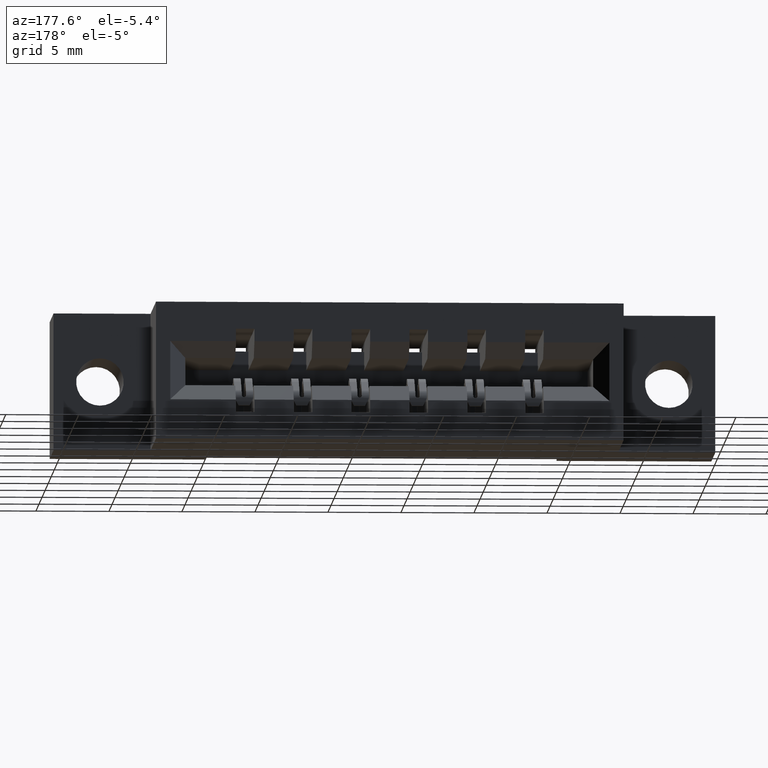
[diagram: clean part render]
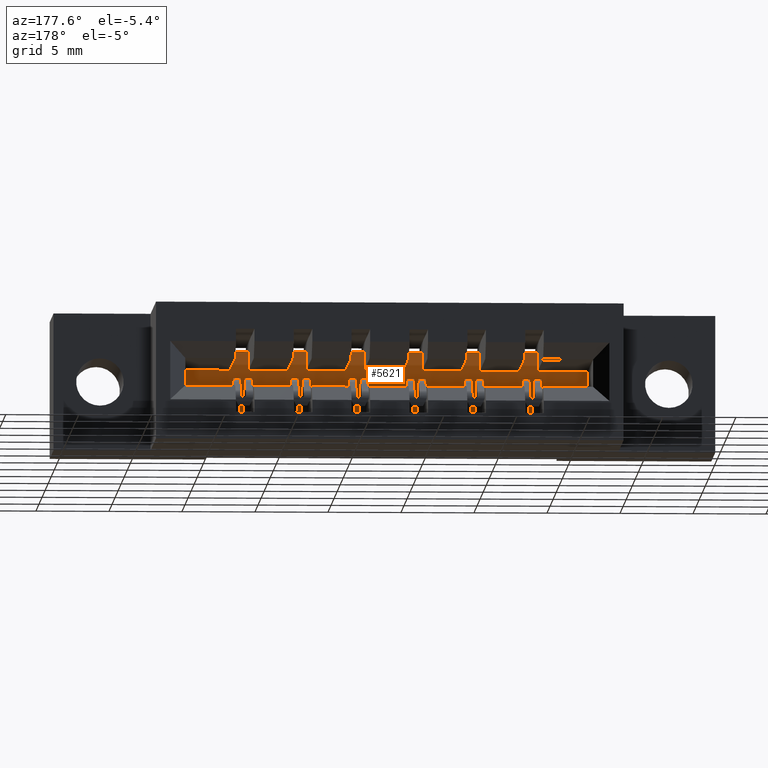
[diagram: same view with one face highlighted and labeled with its STEP entity id]
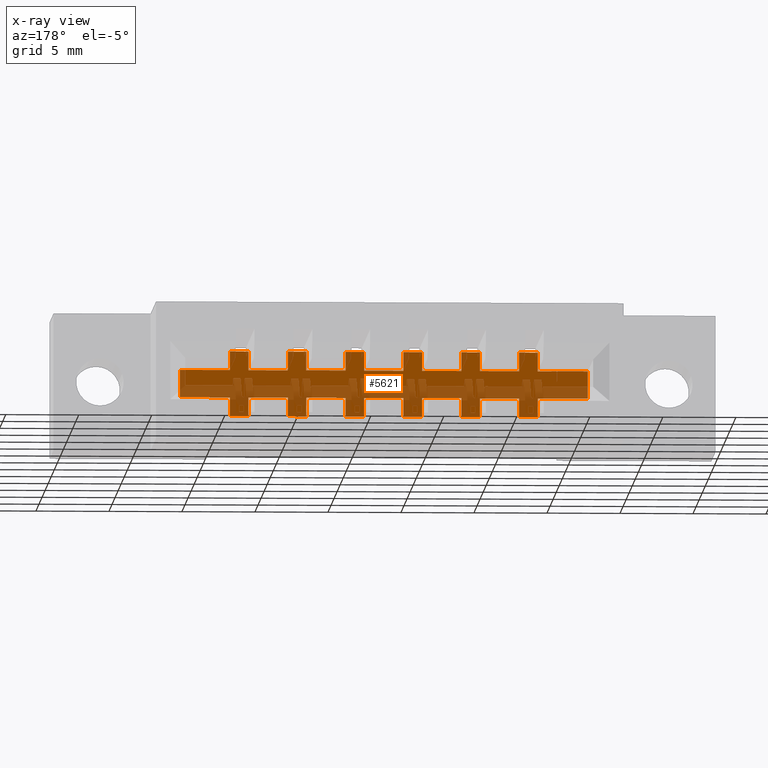
[diagram: x-ray of the same camera — body ghosted, the highlighted face saturated]
A machine part, auxiliary view. The second image highlights one B-rep face of the part: STEP entity #5621.
The next image is the same camera in x-ray: the body ghosted, the highlighted face saturated — about 48% of this face is hidden behind the body in this view.
In plain terms, the highlighted planar face has unit normal (0, -1, 0).
Its self-contained STEP definition (entity closure, byte-faithful):
#1 = DIRECTION ( 'NONE',  ( -0.0000000000000000000, -1.352399996863505455E-15, -1.000000000000000000 ) ) ;
#15 = ORIENTED_EDGE ( 'NONE', *, *, #413, .T. ) ;
#23 = CARTESIAN_POINT ( 'NONE',  ( 0.5269999999999999130, 0.2119999999999999385, -0.2220000000000002804 ) ) ;
#34 = VECTOR ( 'NONE', #3650, 39.37007874015748143 ) ;
#50 = CARTESIAN_POINT ( 'NONE',  ( 1.100999999999999979, 0.2119999999999999385, -0.2220000000000002804 ) ) ;
#77 = DIRECTION ( 'NONE',  ( 0.0000000000000000000, 0.0000000000000000000, -1.000000000000000000 ) ) ;
#113 = LINE ( 'NONE', #2023, #553 ) ;
#116 = VERTEX_POINT ( 'NONE', #23 ) ;
#123 = DIRECTION ( 'NONE',  ( 1.000000000000000000, -0.0000000000000000000, -0.0000000000000000000 ) ) ;
#124 = CARTESIAN_POINT ( 'NONE',  ( 1.256999999999999673, 0.2119999999999999385, -0.2724999999999999645 ) ) ;
#130 = LINE ( 'NONE', #4667, #4557 ) ;
#132 = ORIENTED_EDGE ( 'NONE', *, *, #7953, .T. ) ;
#168 = LINE ( 'NONE', #6779, #2890 ) ;
#212 = ORIENTED_EDGE ( 'NONE', *, *, #5435, .T. ) ;
#224 = VERTEX_POINT ( 'NONE', #236 ) ;
#236 = CARTESIAN_POINT ( 'NONE',  ( 0.6329999999999998961, 0.2119999999999998275, -0.1479999999999999372 ) ) ;
#239 = VECTOR ( 'NONE', #5280, 39.37007874015748143 ) ;
#268 = VECTOR ( 'NONE', #7360, 39.37007874015748143 ) ;
#275 = ORIENTED_EDGE ( 'NONE', *, *, #1096, .F. ) ;
#276 = EDGE_CURVE ( 'NONE', #3813, #2039, #6004, .T. ) ;
#299 = DIRECTION ( 'NONE',  ( 1.000000000000000000, -0.0000000000000000000, -0.0000000000000000000 ) ) ;
#333 = EDGE_CURVE ( 'NONE', #6211, #7041, #6607, .T. ) ;
#337 = CARTESIAN_POINT ( 'NONE',  ( 0.6829999999999999405, 0.2119999999999998830, -0.09750000000000025313 ) ) ;
#357 = VECTOR ( 'NONE', #1, 39.37007874015748143 ) ;
#413 = EDGE_CURVE ( 'NONE', #6975, #3317, #168, .T. ) ;
#417 = EDGE_CURVE ( 'NONE', #5051, #3773, #4834, .T. ) ;
#455 = VERTEX_POINT ( 'NONE', #5588 ) ;
#463 = EDGE_CURVE ( 'NONE', #2039, #4669, #3800, .T. ) ;
#497 = EDGE_CURVE ( 'NONE', #5333, #7066, #2290, .T. ) ;
#534 = ORIENTED_EDGE ( 'NONE', *, *, #7082, .T. ) ;
#536 = CARTESIAN_POINT ( 'NONE',  ( 0.7889999999999998126, 0.2119999999999999385, -0.2220000000000002804 ) ) ;
#551 = ORIENTED_EDGE ( 'NONE', *, *, #6147, .F. ) ;
#553 = VECTOR ( 'NONE', #1478, 39.37007874015748143 ) ;
#589 = ORIENTED_EDGE ( 'NONE', *, *, #1200, .T. ) ;
#599 = CARTESIAN_POINT ( 'NONE',  ( 0.9949999999999998845, 0.2119999999999999385, -0.2220000000000002804 ) ) ;
#624 = EDGE_CURVE ( 'NONE', #2697, #7281, #6539, .T. ) ;
#627 = ORIENTED_EDGE ( 'NONE', *, *, #7741, .T. ) ;
#641 = CARTESIAN_POINT ( 'NONE',  ( 1.442000000000000615, 0.2119999999999999385, -0.2220000000000001139 ) ) ;
#680 = DIRECTION ( 'NONE',  ( -0.0000000000000000000, -1.352399996863505455E-15, -1.000000000000000000 ) ) ;
#710 = EDGE_CURVE ( 'NONE', #3272, #5657, #1288, .T. ) ;
#711 = DIRECTION ( 'NONE',  ( 1.000000000000000000, -0.0000000000000000000, -0.0000000000000000000 ) ) ;
#715 = LINE ( 'NONE', #3942, #2512 ) ;
#735 = ORIENTED_EDGE ( 'NONE', *, *, #4903, .T. ) ;
#795 = DIRECTION ( 'NONE',  ( 0.0000000000000000000, -1.000000000000000000, 0.0000000000000000000 ) ) ;
#805 = VERTEX_POINT ( 'NONE', #4096 ) ;
#819 = CARTESIAN_POINT ( 'NONE',  ( 1.442000000000000615, 0.2119999999999999385, -0.1480000000000001315 ) ) ;
#835 = ORIENTED_EDGE ( 'NONE', *, *, #6887, .T. ) ;
#838 = VERTEX_POINT ( 'NONE', #2732 ) ;
#850 = DIRECTION ( 'NONE',  ( 1.000000000000000000, 0.0000000000000000000, 1.552186360036512475E-16 ) ) ;
#918 = DIRECTION ( 'NONE',  ( -0.0000000000000000000, -1.352399996863505455E-15, -1.000000000000000000 ) ) ;
#936 = CARTESIAN_POINT ( 'NONE',  ( 0.8389999999999998570, 0.2119999999999998275, -0.1479999999999999372 ) ) ;
#976 = CARTESIAN_POINT ( 'NONE',  ( 0.5269999999999999130, 0.2119999999999998275, -0.1479999999999999372 ) ) ;
#979 = ORIENTED_EDGE ( 'NONE', *, *, #417, .T. ) ;
#992 = VECTOR ( 'NONE', #2594, 39.37007874015748143 ) ;
#1030 = EDGE_CURVE ( 'NONE', #2336, #6975, #3828, .T. ) ;
#1036 = VECTOR ( 'NONE', #2052, 39.37007874015748143 ) ;
#1052 = DIRECTION ( 'NONE',  ( 1.000000000000000000, -0.0000000000000000000, -0.0000000000000000000 ) ) ;
#1063 = VECTOR ( 'NONE', #711, 39.37007874015748143 ) ;
#1073 = CARTESIAN_POINT ( 'NONE',  ( 0.3419999999999999152, 0.2119999999999999385, -0.1480000000000002980 ) ) ;
#1076 = CARTESIAN_POINT ( 'NONE',  ( 0.9949999999999998845, 0.2119999999999999385, -0.2220000000000002804 ) ) ;
#1081 = ORIENTED_EDGE ( 'NONE', *, *, #624, .F. ) ;
#1093 = EDGE_CURVE ( 'NONE', #8342, #7281, #6440, .T. ) ;
#1096 = EDGE_CURVE ( 'NONE', #5368, #6812, #1917, .T. ) ;
#1113 = DIRECTION ( 'NONE',  ( 1.000000000000000000, -0.0000000000000000000, -0.0000000000000000000 ) ) ;
#1118 = DIRECTION ( 'NONE',  ( 0.0000000000000000000, 0.0000000000000000000, -1.000000000000000000 ) ) ;
#1123 = CARTESIAN_POINT ( 'NONE',  ( 1.151000000000000023, 0.2119999999999999385, -0.2220000000000002804 ) ) ;
#1145 = LINE ( 'NONE', #4914, #1316 ) ;
#1154 = CARTESIAN_POINT ( 'NONE',  ( 0.7889999999999998126, 0.2119999999999999385, -0.2724999999999999645 ) ) ;
#1166 = EDGE_LOOP ( 'NONE', ( #8149, #5739, #627, #6694, #4867, #7195, #4372, #275, #2655, #735, #7827, #4580, #6190, #2915, #6196, #3762, #4948, #8144, #1576, #4628, #551, #589, #4611, #2210, #5306, #5182, #15, #4769, #5302, #1314, #3392, #2216, #6542, #5899, #212, #5425, #7447, #5853, #979, #132, #4213, #1248, #835, #1704, #1081, #6529, #534, #7172, #3479, #2611, #6482, #2589 ) ) ;
#1199 = CARTESIAN_POINT ( 'NONE',  ( 1.151000000000000023, 0.2119999999999999385, -0.1480000000000001592 ) ) ;
#1200 = EDGE_CURVE ( 'NONE', #4224, #116, #5474, .T. ) ;
#1215 = DIRECTION ( 'NONE',  ( -0.0000000000000000000, -0.0000000000000000000, 1.000000000000000000 ) ) ;
#1227 = VERTEX_POINT ( 'NONE', #4804 ) ;
#1243 = CARTESIAN_POINT ( 'NONE',  ( 1.100999999999999979, 0.2119999999999998830, -0.09750000000000025313 ) ) ;
#1248 = ORIENTED_EDGE ( 'NONE', *, *, #6777, .T. ) ;
#1276 = CARTESIAN_POINT ( 'NONE',  ( 0.7889999999999998126, 0.2119999999999998830, -0.09750000000000025313 ) ) ;
#1288 = LINE ( 'NONE', #3873, #4336 ) ;
#1301 = VECTOR ( 'NONE', #7394, 39.37007874015748143 ) ;
#1314 = ORIENTED_EDGE ( 'NONE', *, *, #276, .T. ) ;
#1316 = VECTOR ( 'NONE', #1854, 39.37007874015748143 ) ;
#1322 = LINE ( 'NONE', #50, #8193 ) ;
#1324 = CARTESIAN_POINT ( 'NONE',  ( 1.100999999999999979, 0.2119999999999999385, -0.2724999999999999645 ) ) ;
#1329 = VERTEX_POINT ( 'NONE', #1791 ) ;
#1342 = EDGE_CURVE ( 'NONE', #2578, #4152, #6793, .T. ) ;
#1402 = CARTESIAN_POINT ( 'NONE',  ( 0.4769999999999999241, 0.2119999999999998830, -0.09750000000000025313 ) ) ;
#1469 = VECTOR ( 'NONE', #8292, 39.37007874015748143 ) ;
#1478 = DIRECTION ( 'NONE',  ( -0.0000000000000000000, -1.352399996863505455E-15, -1.000000000000000000 ) ) ;
#1494 = VERTEX_POINT ( 'NONE', #1199 ) ;
#1554 = EDGE_CURVE ( 'NONE', #2336, #5985, #3391, .T. ) ;
#1562 = DIRECTION ( 'NONE',  ( -1.000000000000000000, -0.0000000000000000000, -1.552186360036512475E-16 ) ) ;
#1576 = ORIENTED_EDGE ( 'NONE', *, *, #710, .T. ) ;
#1593 = VECTOR ( 'NONE', #4361, 39.37007874015748143 ) ;
#1640 = LINE ( 'NONE', #8115, #2951 ) ;
#1669 = CARTESIAN_POINT ( 'NONE',  ( 0.6329999999999998961, 0.2119999999999999385, -0.2220000000000002804 ) ) ;
#1674 = CARTESIAN_POINT ( 'NONE',  ( 1.100999999999999979, 0.2119999999999999385, -0.2724999999999999645 ) ) ;
#1694 = DIRECTION ( 'NONE',  ( -1.000000000000000000, -0.0000000000000000000, -1.552186360036512475E-16 ) ) ;
#1704 = ORIENTED_EDGE ( 'NONE', *, *, #1093, .T. ) ;
#1711 = VECTOR ( 'NONE', #7710, 39.37007874015748143 ) ;
#1737 = DIRECTION ( 'NONE',  ( 1.000000000000000000, 0.0000000000000000000, 1.552186360036512475E-16 ) ) ;
#1791 = CARTESIAN_POINT ( 'NONE',  ( 1.306999999999999718, 0.2119999999999999385, -0.2220000000000002804 ) ) ;
#1849 = VERTEX_POINT ( 'NONE', #3770 ) ;
#1854 = DIRECTION ( 'NONE',  ( -0.0000000000000000000, -1.352399996863505455E-15, -1.000000000000000000 ) ) ;
#1917 = LINE ( 'NONE', #1324, #2784 ) ;
#1924 = CARTESIAN_POINT ( 'NONE',  ( 1.256999999999999673, 0.2119999999999999385, -0.2220000000000002804 ) ) ;
#1927 = VECTOR ( 'NONE', #4042, 39.37007874015748143 ) ;
#1939 = DIRECTION ( 'NONE',  ( 0.0000000000000000000, 0.0000000000000000000, -1.000000000000000000 ) ) ;
#2023 = CARTESIAN_POINT ( 'NONE',  ( 0.9449999999999998401, 0.2119999999999998275, -0.1479999999999999372 ) ) ;
#2025 = EDGE_CURVE ( 'NONE', #8257, #1227, #113, .T. ) ;
#2029 = DIRECTION ( 'NONE',  ( -0.0000000000000000000, -1.352399996863505455E-15, -1.000000000000000000 ) ) ;
#2039 = VERTEX_POINT ( 'NONE', #4647 ) ;
#2048 = CARTESIAN_POINT ( 'NONE',  ( 1.256999999999999673, 0.2119999999999999385, -0.2220000000000002804 ) ) ;
#2052 = DIRECTION ( 'NONE',  ( -0.0000000000000000000, -1.352399996863505455E-15, -1.000000000000000000 ) ) ;
#2069 = VERTEX_POINT ( 'NONE', #5450 ) ;
#2146 = CARTESIAN_POINT ( 'NONE',  ( 0.6329999999999998961, 0.2119999999999998275, -0.1479999999999999372 ) ) ;
#2192 = CARTESIAN_POINT ( 'NONE',  ( 0.4769999999999999241, 0.2119999999999998830, -0.09750000000000025313 ) ) ;
#2195 = LINE ( 'NONE', #4608, #4304 ) ;
#2210 = ORIENTED_EDGE ( 'NONE', *, *, #4357, .F. ) ;
#2216 = ORIENTED_EDGE ( 'NONE', *, *, #2733, .T. ) ;
#2261 = DIRECTION ( 'NONE',  ( 0.0000000000000000000, 0.0000000000000000000, -1.000000000000000000 ) ) ;
#2270 = DIRECTION ( 'NONE',  ( 0.0000000000000000000, 0.0000000000000000000, -1.000000000000000000 ) ) ;
#2290 = LINE ( 'NONE', #4245, #2513 ) ;
#2327 = LINE ( 'NONE', #3560, #3837 ) ;
#2336 = VERTEX_POINT ( 'NONE', #4722 ) ;
#2356 = VERTEX_POINT ( 'NONE', #819 ) ;
#2391 = EDGE_CURVE ( 'NONE', #3903, #1329, #8022, .T. ) ;
#2460 = CARTESIAN_POINT ( 'NONE',  ( 0.3419999999999999152, 0.2119999999999999385, -0.1480000000000002980 ) ) ;
#2501 = VERTEX_POINT ( 'NONE', #4135 ) ;
#2512 = VECTOR ( 'NONE', #123, 39.37007874015748143 ) ;
#2513 = VECTOR ( 'NONE', #299, 39.37007874015748143 ) ;
#2541 = CARTESIAN_POINT ( 'NONE',  ( 1.151000000000000023, 0.2119999999999999385, -0.2724999999999999645 ) ) ;
#2554 = VECTOR ( 'NONE', #918, 39.37007874015748143 ) ;
#2578 = VERTEX_POINT ( 'NONE', #599 ) ;
#2589 = ORIENTED_EDGE ( 'NONE', *, *, #3464, .T. ) ;
#2594 = DIRECTION ( 'NONE',  ( -1.000000000000000000, -0.0000000000000000000, -1.552186360036512475E-16 ) ) ;
#2611 = ORIENTED_EDGE ( 'NONE', *, *, #497, .T. ) ;
#2621 = LINE ( 'NONE', #7110, #357 ) ;
#2631 = DIRECTION ( 'NONE',  ( 0.0000000000000000000, 0.0000000000000000000, -1.000000000000000000 ) ) ;
#2640 = VERTEX_POINT ( 'NONE', #4979 ) ;
#2655 = ORIENTED_EDGE ( 'NONE', *, *, #7698, .F. ) ;
#2656 = LINE ( 'NONE', #6555, #5662 ) ;
#2657 = VERTEX_POINT ( 'NONE', #3357 ) ;
#2697 = VERTEX_POINT ( 'NONE', #7875 ) ;
#2708 = CARTESIAN_POINT ( 'NONE',  ( 0.6829999999999999405, 0.2119999999999999385, -0.2724999999999999645 ) ) ;
#2732 = CARTESIAN_POINT ( 'NONE',  ( 1.151000000000000023, 0.2119999999999998830, -0.09750000000000025313 ) ) ;
#2733 = EDGE_CURVE ( 'NONE', #4669, #224, #3441, .T. ) ;
#2750 = CARTESIAN_POINT ( 'NONE',  ( 0.9949999999999998845, 0.2119999999999998275, -0.1479999999999999372 ) ) ;
#2764 = CARTESIAN_POINT ( 'NONE',  ( 0.3419999999999999152, 0.2119999999999999385, -0.2220000000000002804 ) ) ;
#2784 = VECTOR ( 'NONE', #7671, 39.37007874015748143 ) ;
#2868 = VERTEX_POINT ( 'NONE', #8136 ) ;
#2890 = VECTOR ( 'NONE', #1215, 39.37007874015748143 ) ;
#2915 = ORIENTED_EDGE ( 'NONE', *, *, #3283, .T. ) ;
#2923 = DIRECTION ( 'NONE',  ( -1.000000000000000000, -0.0000000000000000000, -1.552186360036512475E-16 ) ) ;
#2951 = VECTOR ( 'NONE', #2270, 39.37007874015748143 ) ;
#2953 = EDGE_CURVE ( 'NONE', #7780, #4189, #3779, .T. ) ;
#2985 = CARTESIAN_POINT ( 'NONE',  ( 1.256999999999999673, 0.2119999999999998830, -0.09750000000000025313 ) ) ;
#3000 = LINE ( 'NONE', #6852, #7790 ) ;
#3037 = CARTESIAN_POINT ( 'NONE',  ( 1.256999999999999673, 0.2119999999999999385, -0.2724999999999999645 ) ) ;
#3079 = VECTOR ( 'NONE', #7851, 39.37007874015748143 ) ;
#3088 = LINE ( 'NONE', #5674, #4983 ) ;
#3141 = EDGE_CURVE ( 'NONE', #805, #7780, #5297, .T. ) ;
#3156 = EDGE_CURVE ( 'NONE', #4886, #2657, #5166, .T. ) ;
#3185 = CARTESIAN_POINT ( 'NONE',  ( 0.3419999999999999152, 0.2119999999999999385, -0.2220000000000002804 ) ) ;
#3272 = VERTEX_POINT ( 'NONE', #6816 ) ;
#3283 = EDGE_CURVE ( 'NONE', #4886, #3670, #2327, .T. ) ;
#3304 = VERTEX_POINT ( 'NONE', #5373 ) ;
#3310 = CARTESIAN_POINT ( 'NONE',  ( 0.6329999999999998961, 0.2119999999999998830, -0.09750000000000025313 ) ) ;
#3317 = VERTEX_POINT ( 'NONE', #5547 ) ;
#3357 = CARTESIAN_POINT ( 'NONE',  ( 0.9449999999999998401, 0.2119999999999999385, -0.2724999999999999645 ) ) ;
#3391 = LINE ( 'NONE', #6092, #7185 ) ;
#3392 = ORIENTED_EDGE ( 'NONE', *, *, #463, .T. ) ;
#3441 = LINE ( 'NONE', #3949, #3740 ) ;
#3464 = EDGE_CURVE ( 'NONE', #4873, #2356, #3648, .T. ) ;
#3479 = ORIENTED_EDGE ( 'NONE', *, *, #8017, .F. ) ;
#3524 = LINE ( 'NONE', #4117, #4725 ) ;
#3560 = CARTESIAN_POINT ( 'NONE',  ( 0.3419999999999999152, 0.2119999999999999385, -0.2220000000000002804 ) ) ;
#3576 = DIRECTION ( 'NONE',  ( 1.000000000000000000, 0.0000000000000000000, 1.552186360036512475E-16 ) ) ;
#3610 = VECTOR ( 'NONE', #4431, 39.37007874015748143 ) ;
#3648 = LINE ( 'NONE', #5710, #5724 ) ;
#3650 = DIRECTION ( 'NONE',  ( -0.0000000000000000000, -1.352399996863505455E-15, -1.000000000000000000 ) ) ;
#3670 = VERTEX_POINT ( 'NONE', #6078 ) ;
#3690 = EDGE_CURVE ( 'NONE', #6318, #224, #7357, .T. ) ;
#3732 = VECTOR ( 'NONE', #5687, 39.37007874015748143 ) ;
#3740 = VECTOR ( 'NONE', #5890, 39.37007874015748143 ) ;
#3762 = ORIENTED_EDGE ( 'NONE', *, *, #2953, .F. ) ;
#3769 = VECTOR ( 'NONE', #2261, 39.37007874015748143 ) ;
#3770 = CARTESIAN_POINT ( 'NONE',  ( 0.6829999999999999405, 0.2119999999999999385, -0.1480000000000002425 ) ) ;
#3772 = VERTEX_POINT ( 'NONE', #1123 ) ;
#3773 = VERTEX_POINT ( 'NONE', #5611 ) ;
#3779 = LINE ( 'NONE', #1154, #6271 ) ;
#3800 = LINE ( 'NONE', #976, #3610 ) ;
#3813 = VERTEX_POINT ( 'NONE', #2192 ) ;
#3828 = LINE ( 'NONE', #3185, #992 ) ;
#3837 = VECTOR ( 'NONE', #2923, 39.37007874015748143 ) ;
#3851 = LINE ( 'NONE', #7825, #1063 ) ;
#3857 = EDGE_CURVE ( 'NONE', #2697, #838, #5764, .T. ) ;
#3873 = CARTESIAN_POINT ( 'NONE',  ( 0.6829999999999999405, 0.2119999999999999385, -0.2220000000000002804 ) ) ;
#3891 = CARTESIAN_POINT ( 'NONE',  ( 0.9449999999999998401, 0.2119999999999999385, -0.2220000000000002804 ) ) ;
#3903 = VERTEX_POINT ( 'NONE', #641 ) ;
#3907 = DIRECTION ( 'NONE',  ( 1.000000000000000000, -0.0000000000000000000, -0.0000000000000000000 ) ) ;
#3942 = CARTESIAN_POINT ( 'NONE',  ( 0.6329999999999998961, 0.2119999999999999385, -0.2724999999999999645 ) ) ;
#3949 = CARTESIAN_POINT ( 'NONE',  ( 0.3419999999999999152, 0.2119999999999999385, -0.1480000000000002980 ) ) ;
#3968 = CARTESIAN_POINT ( 'NONE',  ( 0.7889999999999998126, 0.2119999999999998275, -0.1479999999999999372 ) ) ;
#3988 = LINE ( 'NONE', #1276, #5776 ) ;
#4042 = DIRECTION ( 'NONE',  ( -1.000000000000000000, -0.0000000000000000000, -1.552186360036512475E-16 ) ) ;
#4076 = DIRECTION ( 'NONE',  ( 0.0000000000000000000, 0.0000000000000000000, -1.000000000000000000 ) ) ;
#4080 = LINE ( 'NONE', #4754, #7008 ) ;
#4096 = CARTESIAN_POINT ( 'NONE',  ( 0.7889999999999998126, 0.2119999999999999385, -0.2220000000000002804 ) ) ;
#4117 = CARTESIAN_POINT ( 'NONE',  ( 0.3419999999999999152, 0.2119999999999999385, -0.2220000000000002804 ) ) ;
#4135 = CARTESIAN_POINT ( 'NONE',  ( 0.5269999999999999130, 0.2119999999999999385, -0.2724999999999999645 ) ) ;
#4151 = CARTESIAN_POINT ( 'NONE',  ( 1.442000000000000615, 0.2119999999999999385, -0.2220000000000001139 ) ) ;
#4152 = VERTEX_POINT ( 'NONE', #4171 ) ;
#4156 = CARTESIAN_POINT ( 'NONE',  ( 0.3419999999999999152, 0.2119999999999999385, -0.2220000000000002804 ) ) ;
#4171 = CARTESIAN_POINT ( 'NONE',  ( 0.9949999999999998845, 0.2119999999999999385, -0.2724999999999999645 ) ) ;
#4189 = VERTEX_POINT ( 'NONE', #4970 ) ;
#4213 = ORIENTED_EDGE ( 'NONE', *, *, #2025, .F. ) ;
#4224 = VERTEX_POINT ( 'NONE', #1669 ) ;
#4244 = CARTESIAN_POINT ( 'NONE',  ( 0.6329999999999998961, 0.2119999999999998830, -0.09750000000000025313 ) ) ;
#4245 = CARTESIAN_POINT ( 'NONE',  ( 1.256999999999999673, 0.2119999999999998830, -0.09750000000000025313 ) ) ;
#4298 = LINE ( 'NONE', #1073, #7103 ) ;
#4304 = VECTOR ( 'NONE', #1562, 39.37007874015748143 ) ;
#4336 = VECTOR ( 'NONE', #6450, 39.37007874015748143 ) ;
#4357 = EDGE_CURVE ( 'NONE', #5985, #2501, #7900, .T. ) ;
#4361 = DIRECTION ( 'NONE',  ( -0.0000000000000000000, -1.352399996863505455E-15, -1.000000000000000000 ) ) ;
#4372 = ORIENTED_EDGE ( 'NONE', *, *, #4964, .T. ) ;
#4396 = EDGE_CURVE ( 'NONE', #805, #3272, #2195, .T. ) ;
#4431 = DIRECTION ( 'NONE',  ( -0.0000000000000000000, -1.352399996863505455E-15, -1.000000000000000000 ) ) ;
#4444 = EDGE_CURVE ( 'NONE', #3813, #2640, #8036, .T. ) ;
#4472 = DIRECTION ( 'NONE',  ( 0.0000000000000000000, 0.0000000000000000000, -1.000000000000000000 ) ) ;
#4483 = EDGE_CURVE ( 'NONE', #2657, #4152, #3000, .T. ) ;
#4557 = VECTOR ( 'NONE', #680, 39.37007874015748143 ) ;
#4580 = ORIENTED_EDGE ( 'NONE', *, *, #4483, .F. ) ;
#4598 = LINE ( 'NONE', #6631, #3079 ) ;
#4608 = CARTESIAN_POINT ( 'NONE',  ( 0.3419999999999999152, 0.2119999999999999385, -0.2220000000000002804 ) ) ;
#4611 = ORIENTED_EDGE ( 'NONE', *, *, #5372, .T. ) ;
#4627 = CARTESIAN_POINT ( 'NONE',  ( 0.3419999999999999152, 0.2119999999999999385, -0.1480000000000002980 ) ) ;
#4628 = ORIENTED_EDGE ( 'NONE', *, *, #8074, .F. ) ;
#4647 = CARTESIAN_POINT ( 'NONE',  ( 0.5269999999999999130, 0.2119999999999998830, -0.09750000000000025313 ) ) ;
#4666 = EDGE_CURVE ( 'NONE', #5133, #6211, #8313, .T. ) ;
#4667 = CARTESIAN_POINT ( 'NONE',  ( 0.7889999999999998126, 0.2119999999999998275, -0.1479999999999999372 ) ) ;
#4669 = VERTEX_POINT ( 'NONE', #7136 ) ;
#4692 = DIRECTION ( 'NONE',  ( 0.0000000000000000000, -0.0000000000000000000, -1.000000000000000000 ) ) ;
#4722 = CARTESIAN_POINT ( 'NONE',  ( 0.4769999999999999241, 0.2119999999999999385, -0.2220000000000002804 ) ) ;
#4725 = VECTOR ( 'NONE', #1694, 39.37007874015748143 ) ;
#4745 = DIRECTION ( 'NONE',  ( 1.000000000000000000, -0.0000000000000000000, -0.0000000000000000000 ) ) ;
#4754 = CARTESIAN_POINT ( 'NONE',  ( 0.3419999999999999152, 0.2119999999999999385, -0.1480000000000002980 ) ) ;
#4769 = ORIENTED_EDGE ( 'NONE', *, *, #6497, .T. ) ;
#4791 = VECTOR ( 'NONE', #1939, 39.37007874015748143 ) ;
#4800 = CARTESIAN_POINT ( 'NONE',  ( 0.7889999999999998126, 0.2119999999999999385, -0.2724999999999999645 ) ) ;
#4804 = CARTESIAN_POINT ( 'NONE',  ( 0.9449999999999998401, 0.2119999999999998275, -0.1479999999999999372 ) ) ;
#4819 = VECTOR ( 'NONE', #6778, 39.37007874015748143 ) ;
#4834 = LINE ( 'NONE', #936, #34 ) ;
#4867 = ORIENTED_EDGE ( 'NONE', *, *, #4666, .F. ) ;
#4873 = VERTEX_POINT ( 'NONE', #6845 ) ;
#4886 = VERTEX_POINT ( 'NONE', #7520 ) ;
#4903 = EDGE_CURVE ( 'NONE', #2868, #2578, #6245, .T. ) ;
#4914 = CARTESIAN_POINT ( 'NONE',  ( 1.151000000000000023, 0.2119999999999998275, -0.1479999999999999372 ) ) ;
#4932 = DIRECTION ( 'NONE',  ( 0.0000000000000000000, 0.0000000000000000000, -1.000000000000000000 ) ) ;
#4948 = ORIENTED_EDGE ( 'NONE', *, *, #3141, .F. ) ;
#4964 = EDGE_CURVE ( 'NONE', #3772, #6812, #6803, .T. ) ;
#4970 = CARTESIAN_POINT ( 'NONE',  ( 0.8389999999999998570, 0.2119999999999999385, -0.2724999999999999645 ) ) ;
#4979 = CARTESIAN_POINT ( 'NONE',  ( 0.4769999999999999241, 0.2119999999999998275, -0.1479999999999999372 ) ) ;
#4983 = VECTOR ( 'NONE', #7492, 39.37007874015748143 ) ;
#4984 = AXIS2_PLACEMENT_3D ( 'NONE', #4151, #795, #4692 ) ;
#5051 = VERTEX_POINT ( 'NONE', #6931 ) ;
#5133 = VERTEX_POINT ( 'NONE', #2048 ) ;
#5166 = LINE ( 'NONE', #3891, #4791 ) ;
#5181 = VECTOR ( 'NONE', #1118, 39.37007874015748143 ) ;
#5182 = ORIENTED_EDGE ( 'NONE', *, *, #1030, .T. ) ;
#5276 = CARTESIAN_POINT ( 'NONE',  ( 1.100999999999999979, 0.2119999999999998275, -0.1479999999999999372 ) ) ;
#5280 = DIRECTION ( 'NONE',  ( 1.000000000000000000, 0.0000000000000000000, 1.552186360036512475E-16 ) ) ;
#5297 = LINE ( 'NONE', #536, #7356 ) ;
#5302 = ORIENTED_EDGE ( 'NONE', *, *, #4444, .F. ) ;
#5306 = ORIENTED_EDGE ( 'NONE', *, *, #1554, .F. ) ;
#5333 = VERTEX_POINT ( 'NONE', #2985 ) ;
#5368 = VERTEX_POINT ( 'NONE', #1674 ) ;
#5372 = EDGE_CURVE ( 'NONE', #116, #2501, #6106, .T. ) ;
#5373 = CARTESIAN_POINT ( 'NONE',  ( 1.256999999999999673, 0.2119999999999998275, -0.1479999999999999372 ) ) ;
#5421 = DIRECTION ( 'NONE',  ( 1.000000000000000000, -0.0000000000000000000, -0.0000000000000000000 ) ) ;
#5425 = ORIENTED_EDGE ( 'NONE', *, *, #5945, .T. ) ;
#5435 = EDGE_CURVE ( 'NONE', #6844, #1849, #2656, .T. ) ;
#5450 = CARTESIAN_POINT ( 'NONE',  ( 0.7889999999999998126, 0.2119999999999998830, -0.09750000000000025313 ) ) ;
#5474 = LINE ( 'NONE', #2764, #1927 ) ;
#5476 = CARTESIAN_POINT ( 'NONE',  ( 0.5269999999999999130, 0.2119999999999999385, -0.2220000000000002804 ) ) ;
#5530 = DIRECTION ( 'NONE',  ( 0.0000000000000000000, 0.0000000000000000000, -1.000000000000000000 ) ) ;
#5547 = CARTESIAN_POINT ( 'NONE',  ( 0.3419999999999999152, 0.2119999999999999385, -0.1480000000000002980 ) ) ;
#5569 = CARTESIAN_POINT ( 'NONE',  ( 1.100999999999999979, 0.2119999999999998275, -0.1479999999999999372 ) ) ;
#5588 = CARTESIAN_POINT ( 'NONE',  ( 0.6329999999999998961, 0.2119999999999999385, -0.2724999999999999645 ) ) ;
#5611 = CARTESIAN_POINT ( 'NONE',  ( 0.8389999999999998570, 0.2119999999999999385, -0.1480000000000002147 ) ) ;
#5621 = ADVANCED_FACE ( 'NONE', ( #5997 ), #6040, .F. ) ;
#5657 = VERTEX_POINT ( 'NONE', #2708 ) ;
#5662 = VECTOR ( 'NONE', #2029, 39.37007874015748143 ) ;
#5674 = CARTESIAN_POINT ( 'NONE',  ( 1.306999999999999718, 0.2119999999999998275, -0.1479999999999999372 ) ) ;
#5687 = DIRECTION ( 'NONE',  ( 1.000000000000000000, 0.0000000000000000000, 1.552186360036512475E-16 ) ) ;
#5710 = CARTESIAN_POINT ( 'NONE',  ( 0.3419999999999999152, 0.2119999999999999385, -0.1480000000000002980 ) ) ;
#5724 = VECTOR ( 'NONE', #1737, 39.37007874015748143 ) ;
#5739 = ORIENTED_EDGE ( 'NONE', *, *, #2391, .T. ) ;
#5756 = LINE ( 'NONE', #2460, #3732 ) ;
#5764 = LINE ( 'NONE', #1243, #7687 ) ;
#5776 = VECTOR ( 'NONE', #7118, 39.37007874015748143 ) ;
#5853 = ORIENTED_EDGE ( 'NONE', *, *, #6316, .T. ) ;
#5890 = DIRECTION ( 'NONE',  ( 1.000000000000000000, 0.0000000000000000000, 1.552186360036512475E-16 ) ) ;
#5899 = ORIENTED_EDGE ( 'NONE', *, *, #8164, .T. ) ;
#5945 = EDGE_CURVE ( 'NONE', #1849, #7223, #5986, .T. ) ;
#5976 = EDGE_CURVE ( 'NONE', #3670, #4189, #4598, .T. ) ;
#5985 = VERTEX_POINT ( 'NONE', #7224 ) ;
#5986 = LINE ( 'NONE', #7935, #239 ) ;
#5997 = FACE_OUTER_BOUND ( 'NONE', #1166, .T. ) ;
#6004 = LINE ( 'NONE', #1402, #8286 ) ;
#6040 = PLANE ( 'NONE',  #4984 ) ;
#6070 = DIRECTION ( 'NONE',  ( -1.000000000000000000, -0.0000000000000000000, -1.552186360036512475E-16 ) ) ;
#6078 = CARTESIAN_POINT ( 'NONE',  ( 0.8389999999999998570, 0.2119999999999999385, -0.2220000000000002804 ) ) ;
#6092 = CARTESIAN_POINT ( 'NONE',  ( 0.4769999999999999241, 0.2119999999999999385, -0.2220000000000002804 ) ) ;
#6101 = VERTEX_POINT ( 'NONE', #7481 ) ;
#6106 = LINE ( 'NONE', #5476, #3769 ) ;
#6116 = VECTOR ( 'NONE', #5421, 39.37007874015748143 ) ;
#6147 = EDGE_CURVE ( 'NONE', #4224, #455, #1640, .T. ) ;
#6158 = CARTESIAN_POINT ( 'NONE',  ( 1.151000000000000023, 0.2119999999999999385, -0.2220000000000002804 ) ) ;
#6190 = ORIENTED_EDGE ( 'NONE', *, *, #3156, .F. ) ;
#6196 = ORIENTED_EDGE ( 'NONE', *, *, #5976, .T. ) ;
#6211 = VERTEX_POINT ( 'NONE', #3037 ) ;
#6245 = LINE ( 'NONE', #8069, #1301 ) ;
#6257 = CARTESIAN_POINT ( 'NONE',  ( 1.306999999999999718, 0.2119999999999998830, -0.09750000000000025313 ) ) ;
#6267 = EDGE_CURVE ( 'NONE', #2069, #7223, #130, .T. ) ;
#6268 = LINE ( 'NONE', #6350, #1469 ) ;
#6271 = VECTOR ( 'NONE', #1113, 39.37007874015748143 ) ;
#6316 = EDGE_CURVE ( 'NONE', #2069, #5051, #3988, .T. ) ;
#6318 = VERTEX_POINT ( 'NONE', #3310 ) ;
#6350 = CARTESIAN_POINT ( 'NONE',  ( 1.442000000000000615, 0.2119999999999999385, -0.1480000000000001315 ) ) ;
#6440 = LINE ( 'NONE', #4627, #1711 ) ;
#6450 = DIRECTION ( 'NONE',  ( 0.0000000000000000000, 0.0000000000000000000, -1.000000000000000000 ) ) ;
#6482 = ORIENTED_EDGE ( 'NONE', *, *, #7042, .T. ) ;
#6497 = EDGE_CURVE ( 'NONE', #3317, #2640, #4080, .T. ) ;
#6529 = ORIENTED_EDGE ( 'NONE', *, *, #3857, .T. ) ;
#6539 = LINE ( 'NONE', #5276, #1036 ) ;
#6542 = ORIENTED_EDGE ( 'NONE', *, *, #3690, .F. ) ;
#6555 = CARTESIAN_POINT ( 'NONE',  ( 0.6829999999999999405, 0.2119999999999998275, -0.1479999999999999372 ) ) ;
#6571 = EDGE_CURVE ( 'NONE', #2356, #3903, #6268, .T. ) ;
#6607 = LINE ( 'NONE', #124, #6116 ) ;
#6631 = CARTESIAN_POINT ( 'NONE',  ( 0.8389999999999998570, 0.2119999999999999385, -0.2220000000000002804 ) ) ;
#6688 = CARTESIAN_POINT ( 'NONE',  ( 0.9449999999999998401, 0.2119999999999998830, -0.09750000000000025313 ) ) ;
#6694 = ORIENTED_EDGE ( 'NONE', *, *, #333, .F. ) ;
#6721 = CARTESIAN_POINT ( 'NONE',  ( 0.4769999999999999241, 0.2119999999999999385, -0.2724999999999999645 ) ) ;
#6777 = EDGE_CURVE ( 'NONE', #8257, #6101, #3851, .T. ) ;
#6778 = DIRECTION ( 'NONE',  ( 1.000000000000000000, -0.0000000000000000000, -0.0000000000000000000 ) ) ;
#6779 = CARTESIAN_POINT ( 'NONE',  ( 0.3419999999999999152, 0.2119999999999999385, -0.1480000000000002980 ) ) ;
#6792 = CARTESIAN_POINT ( 'NONE',  ( 0.9949999999999998845, 0.2119999999999999385, -0.1480000000000001870 ) ) ;
#6793 = LINE ( 'NONE', #1076, #5181 ) ;
#6803 = LINE ( 'NONE', #6158, #8201 ) ;
#6812 = VERTEX_POINT ( 'NONE', #2541 ) ;
#6815 = DIRECTION ( 'NONE',  ( -0.0000000000000000000, -1.352399996863505455E-15, -1.000000000000000000 ) ) ;
#6816 = CARTESIAN_POINT ( 'NONE',  ( 0.6829999999999999405, 0.2119999999999999385, -0.2220000000000002804 ) ) ;
#6830 = LINE ( 'NONE', #7339, #7914 ) ;
#6839 = CARTESIAN_POINT ( 'NONE',  ( 0.3419999999999999152, 0.2119999999999999385, -0.2220000000000002804 ) ) ;
#6844 = VERTEX_POINT ( 'NONE', #337 ) ;
#6845 = CARTESIAN_POINT ( 'NONE',  ( 1.306999999999999718, 0.2119999999999999385, -0.1480000000000001315 ) ) ;
#6852 = CARTESIAN_POINT ( 'NONE',  ( 0.9449999999999998401, 0.2119999999999999385, -0.2724999999999999645 ) ) ;
#6887 = EDGE_CURVE ( 'NONE', #6101, #8342, #8041, .T. ) ;
#6931 = CARTESIAN_POINT ( 'NONE',  ( 0.8389999999999998570, 0.2119999999999998830, -0.09750000000000025313 ) ) ;
#6975 = VERTEX_POINT ( 'NONE', #4156 ) ;
#7008 = VECTOR ( 'NONE', #850, 39.37007874015748143 ) ;
#7041 = VERTEX_POINT ( 'NONE', #7607 ) ;
#7042 = EDGE_CURVE ( 'NONE', #7066, #4873, #3088, .T. ) ;
#7066 = VERTEX_POINT ( 'NONE', #6257 ) ;
#7082 = EDGE_CURVE ( 'NONE', #838, #1494, #1145, .T. ) ;
#7103 = VECTOR ( 'NONE', #3576, 39.37007874015748143 ) ;
#7110 = CARTESIAN_POINT ( 'NONE',  ( 1.256999999999999673, 0.2119999999999998275, -0.1479999999999999372 ) ) ;
#7118 = DIRECTION ( 'NONE',  ( 1.000000000000000000, -0.0000000000000000000, -0.0000000000000000000 ) ) ;
#7136 = CARTESIAN_POINT ( 'NONE',  ( 0.5269999999999999130, 0.2119999999999998275, -0.1479999999999999372 ) ) ;
#7172 = ORIENTED_EDGE ( 'NONE', *, *, #7771, .T. ) ;
#7185 = VECTOR ( 'NONE', #4076, 39.37007874015748143 ) ;
#7195 = ORIENTED_EDGE ( 'NONE', *, *, #8282, .T. ) ;
#7223 = VERTEX_POINT ( 'NONE', #3968 ) ;
#7224 = CARTESIAN_POINT ( 'NONE',  ( 0.4769999999999999241, 0.2119999999999999385, -0.2724999999999999645 ) ) ;
#7281 = VERTEX_POINT ( 'NONE', #5569 ) ;
#7339 = CARTESIAN_POINT ( 'NONE',  ( 1.306999999999999718, 0.2119999999999999385, -0.2220000000000002804 ) ) ;
#7356 = VECTOR ( 'NONE', #77, 39.37007874015748143 ) ;
#7357 = LINE ( 'NONE', #2146, #2554 ) ;
#7360 = DIRECTION ( 'NONE',  ( 1.000000000000000000, -0.0000000000000000000, -0.0000000000000000000 ) ) ;
#7394 = DIRECTION ( 'NONE',  ( -1.000000000000000000, -0.0000000000000000000, -1.552186360036512475E-16 ) ) ;
#7416 = VECTOR ( 'NONE', #6815, 39.37007874015748143 ) ;
#7445 = CARTESIAN_POINT ( 'NONE',  ( 0.4769999999999999241, 0.2119999999999998275, -0.1479999999999999372 ) ) ;
#7447 = ORIENTED_EDGE ( 'NONE', *, *, #6267, .F. ) ;
#7481 = CARTESIAN_POINT ( 'NONE',  ( 0.9949999999999998845, 0.2119999999999998830, -0.09750000000000025313 ) ) ;
#7492 = DIRECTION ( 'NONE',  ( -0.0000000000000000000, -1.352399996863505455E-15, -1.000000000000000000 ) ) ;
#7520 = CARTESIAN_POINT ( 'NONE',  ( 0.9449999999999998401, 0.2119999999999999385, -0.2220000000000002804 ) ) ;
#7607 = CARTESIAN_POINT ( 'NONE',  ( 1.306999999999999718, 0.2119999999999999385, -0.2724999999999999645 ) ) ;
#7671 = DIRECTION ( 'NONE',  ( 1.000000000000000000, -0.0000000000000000000, -0.0000000000000000000 ) ) ;
#7687 = VECTOR ( 'NONE', #3907, 39.37007874015748143 ) ;
#7698 = EDGE_CURVE ( 'NONE', #2868, #5368, #1322, .T. ) ;
#7710 = DIRECTION ( 'NONE',  ( 1.000000000000000000, 0.0000000000000000000, 1.552186360036512475E-16 ) ) ;
#7741 = EDGE_CURVE ( 'NONE', #1329, #7041, #6830, .T. ) ;
#7771 = EDGE_CURVE ( 'NONE', #1494, #3304, #4298, .T. ) ;
#7780 = VERTEX_POINT ( 'NONE', #4800 ) ;
#7781 = VECTOR ( 'NONE', #4472, 39.37007874015748143 ) ;
#7790 = VECTOR ( 'NONE', #1052, 39.37007874015748143 ) ;
#7825 = CARTESIAN_POINT ( 'NONE',  ( 0.9449999999999998401, 0.2119999999999998830, -0.09750000000000025313 ) ) ;
#7827 = ORIENTED_EDGE ( 'NONE', *, *, #1342, .T. ) ;
#7851 = DIRECTION ( 'NONE',  ( 0.0000000000000000000, 0.0000000000000000000, -1.000000000000000000 ) ) ;
#7875 = CARTESIAN_POINT ( 'NONE',  ( 1.100999999999999979, 0.2119999999999998830, -0.09750000000000025313 ) ) ;
#7900 = LINE ( 'NONE', #6721, #268 ) ;
#7914 = VECTOR ( 'NONE', #4932, 39.37007874015748143 ) ;
#7935 = CARTESIAN_POINT ( 'NONE',  ( 0.3419999999999999152, 0.2119999999999999385, -0.1480000000000002980 ) ) ;
#7953 = EDGE_CURVE ( 'NONE', #3773, #1227, #5756, .T. ) ;
#8000 = LINE ( 'NONE', #4244, #4819 ) ;
#8017 = EDGE_CURVE ( 'NONE', #5333, #3304, #2621, .T. ) ;
#8022 = LINE ( 'NONE', #6839, #8227 ) ;
#8036 = LINE ( 'NONE', #7445, #1593 ) ;
#8041 = LINE ( 'NONE', #2750, #7416 ) ;
#8069 = CARTESIAN_POINT ( 'NONE',  ( 0.3419999999999999152, 0.2119999999999999385, -0.2220000000000002804 ) ) ;
#8074 = EDGE_CURVE ( 'NONE', #455, #5657, #715, .T. ) ;
#8115 = CARTESIAN_POINT ( 'NONE',  ( 0.6329999999999998961, 0.2119999999999999385, -0.2220000000000002804 ) ) ;
#8136 = CARTESIAN_POINT ( 'NONE',  ( 1.100999999999999979, 0.2119999999999999385, -0.2220000000000002804 ) ) ;
#8144 = ORIENTED_EDGE ( 'NONE', *, *, #4396, .T. ) ;
#8149 = ORIENTED_EDGE ( 'NONE', *, *, #6571, .T. ) ;
#8164 = EDGE_CURVE ( 'NONE', #6318, #6844, #8000, .T. ) ;
#8193 = VECTOR ( 'NONE', #2631, 39.37007874015748143 ) ;
#8201 = VECTOR ( 'NONE', #5530, 39.37007874015748143 ) ;
#8227 = VECTOR ( 'NONE', #6070, 39.37007874015748143 ) ;
#8257 = VERTEX_POINT ( 'NONE', #6688 ) ;
#8282 = EDGE_CURVE ( 'NONE', #5133, #3772, #3524, .T. ) ;
#8286 = VECTOR ( 'NONE', #4745, 39.37007874015748143 ) ;
#8292 = DIRECTION ( 'NONE',  ( 0.0000000000000000000, 0.0000000000000000000, -1.000000000000000000 ) ) ;
#8313 = LINE ( 'NONE', #1924, #7781 ) ;
#8342 = VERTEX_POINT ( 'NONE', #6792 ) ;